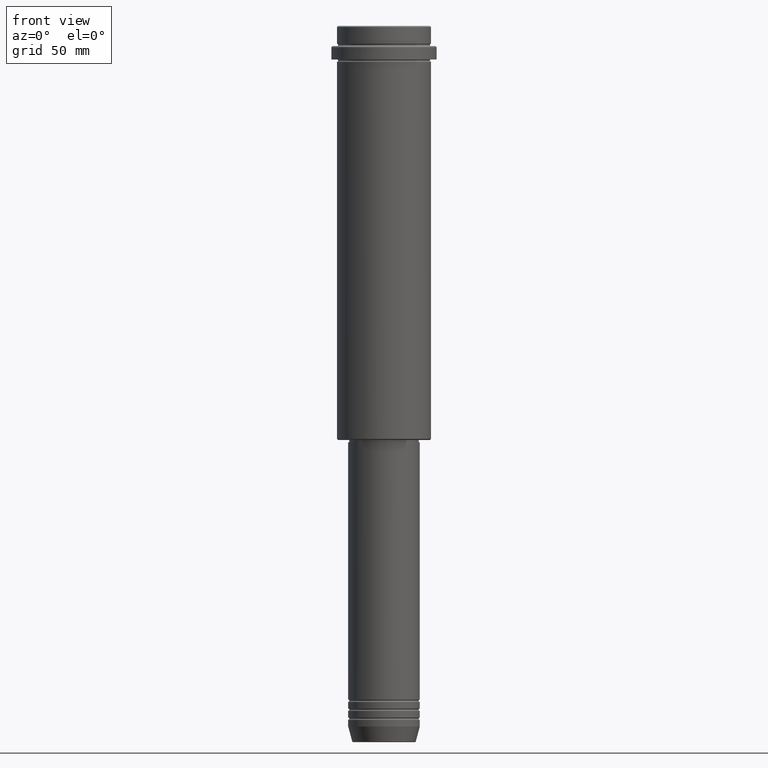
[diagram: clean part render]
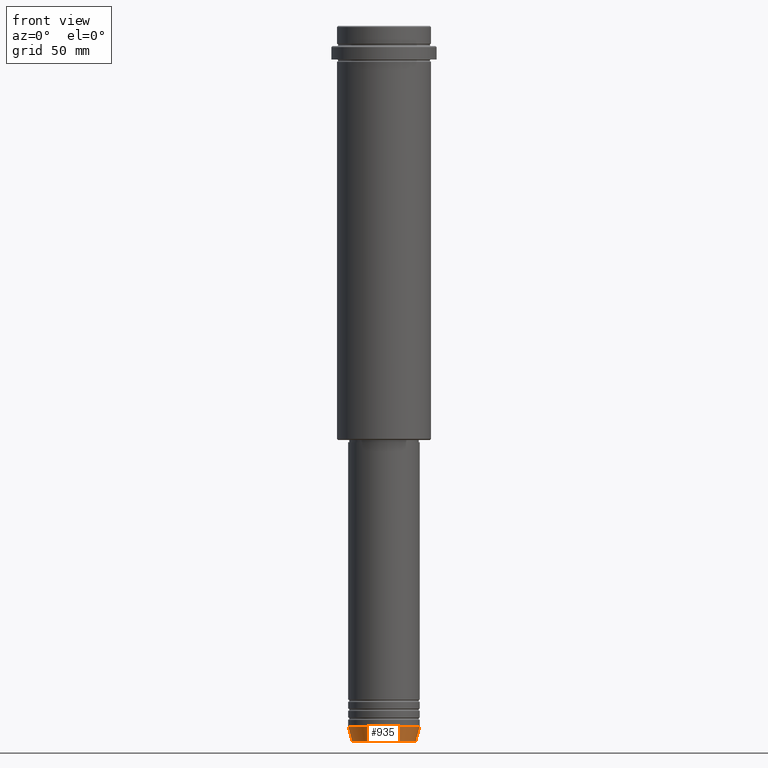
[diagram: same view with one face highlighted and labeled with its STEP entity id]
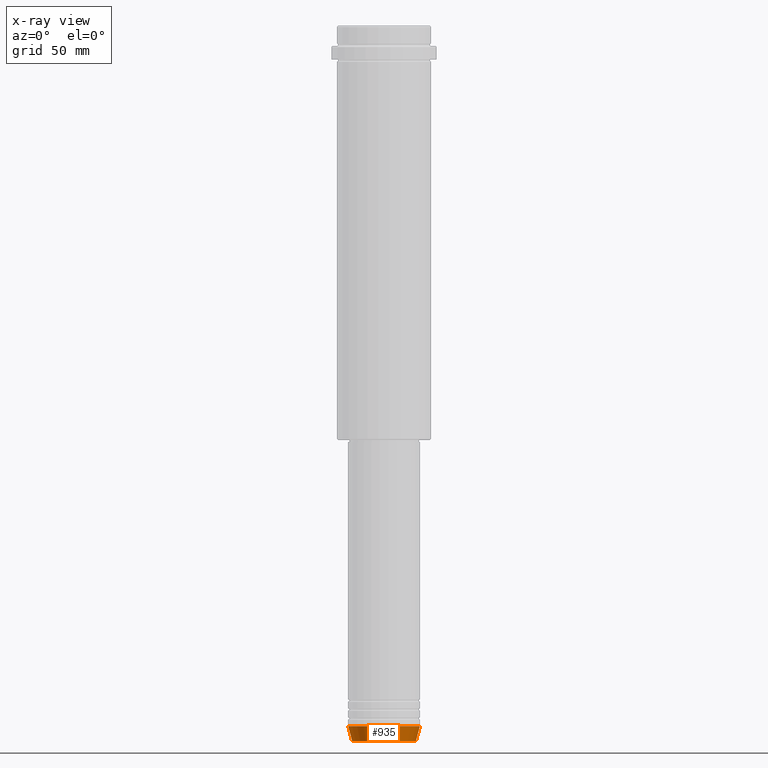
[diagram: x-ray of the same camera — body ghosted, the highlighted face saturated]
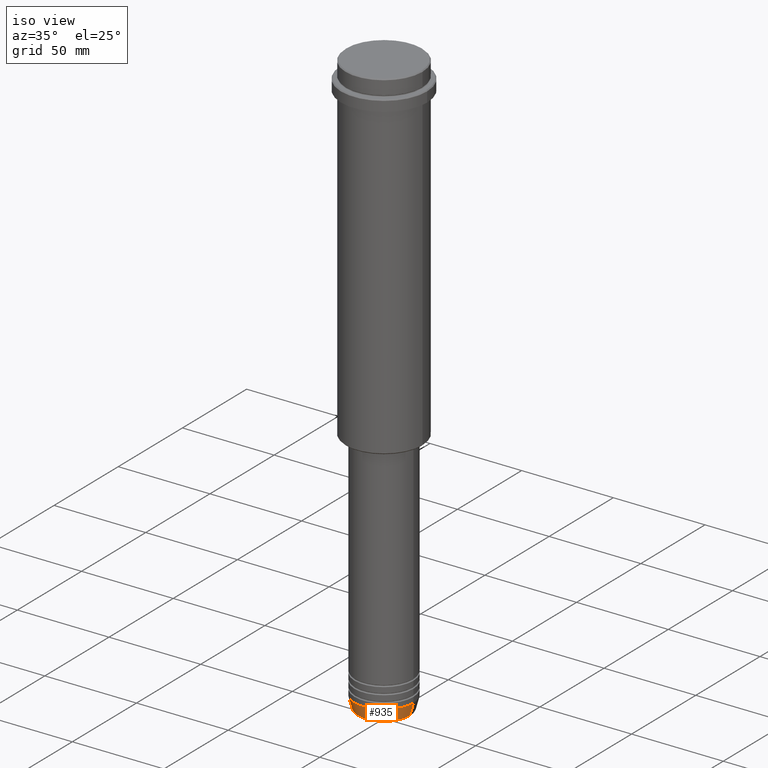
[diagram: same view with one face highlighted and labeled with its STEP entity id]
A machine part, front view. The second image highlights one B-rep face of the part: STEP entity #935.
The next image is the same camera in x-ray: the body ghosted, the highlighted face saturated — about 0% of this face is hidden behind the body in this view.
A second angle (iso view) of the same face is appended — the face is thin or edge-on in the first view.
In plain terms, the highlighted conical surface has half-angle 15 deg.
Its self-contained STEP definition (entity closure, byte-faithful):
#34 = VERTEX_POINT ( 'NONE', #930 ) ;
#41 = CONICAL_SURFACE ( 'NONE', #840, 16.00000000000000000, 0.2617993877991500740 ) ;
#64 = AXIS2_PLACEMENT_3D ( 'NONE', #402, #1178, #1062 ) ;
#99 = DIRECTION ( 'NONE',  ( 1.000000000000000000, 0.000000000000000000, 0.000000000000000000 ) ) ;
#115 = CARTESIAN_POINT ( 'NONE',  ( 0.000000000000000000, 0.000000000000000000, -313.0000000000000000 ) ) ;
#123 = VERTEX_POINT ( 'NONE', #826 ) ;
#127 = AXIS2_PLACEMENT_3D ( 'NONE', #1007, #1331, #99 ) ;
#236 = LINE ( 'NONE', #1329, #393 ) ;
#262 = EDGE_CURVE ( 'NONE', #478, #34, #1252, .T. ) ;
#338 = CARTESIAN_POINT ( 'NONE',  ( -16.00000000000000000, 1.959434878635765131E-15, -313.0000000000000000 ) ) ;
#393 = VECTOR ( 'NONE', #1310, 1000.000000000000000 ) ;
#402 = CARTESIAN_POINT ( 'NONE',  ( 0.000000000000000000, 0.000000000000000000, -313.0000000000000000 ) ) ;
#420 = EDGE_CURVE ( 'NONE', #1376, #123, #744, .T. ) ;
#478 = VERTEX_POINT ( 'NONE', #338 ) ;
#486 = ORIENTED_EDGE ( 'NONE', *, *, #262, .F. ) ;
#529 = CARTESIAN_POINT ( 'NONE',  ( -14.22365507213718772, 1.850665122131323337E-15, -319.6294095225512706 ) ) ;
#539 = ORIENTED_EDGE ( 'NONE', *, *, #1307, .T. ) ;
#642 = EDGE_LOOP ( 'NONE', ( #749, #1339, #539, #486 ) ) ;
#658 = DIRECTION ( 'NONE',  ( 1.000000000000000000, 0.000000000000000000, 0.000000000000000000 ) ) ;
#744 = CIRCLE ( 'NONE', #127, 14.22365507213718772 ) ;
#749 = ORIENTED_EDGE ( 'NONE', *, *, #864, .F. ) ;
#826 = CARTESIAN_POINT ( 'NONE',  ( 14.22365507213718772, 0.000000000000000000, -319.6294095225512706 ) ) ;
#840 = AXIS2_PLACEMENT_3D ( 'NONE', #115, #1202, #658 ) ;
#864 = EDGE_CURVE ( 'NONE', #1376, #478, #236, .T. ) ;
#930 = CARTESIAN_POINT ( 'NONE',  ( 16.00000000000000000, 0.000000000000000000, -313.0000000000000000 ) ) ;
#935 = ADVANCED_FACE ( 'NONE', ( #987 ), #41, .T. ) ;
#969 = DIRECTION ( 'NONE',  ( 0.2588190451025213501, 0.000000000000000000, 0.9659258262890680902 ) ) ;
#987 = FACE_OUTER_BOUND ( 'NONE', #642, .T. ) ;
#1007 = CARTESIAN_POINT ( 'NONE',  ( 0.000000000000000000, 0.000000000000000000, -319.6294095225512706 ) ) ;
#1062 = DIRECTION ( 'NONE',  ( 1.000000000000000000, 0.000000000000000000, 0.000000000000000000 ) ) ;
#1178 = DIRECTION ( 'NONE',  ( -0.000000000000000000, -0.000000000000000000, 1.000000000000000000 ) ) ;
#1186 = VECTOR ( 'NONE', #969, 1000.000000000000000 ) ;
#1187 = LINE ( 'NONE', #1407, #1186 ) ;
#1202 = DIRECTION ( 'NONE',  ( -0.000000000000000000, -0.000000000000000000, 1.000000000000000000 ) ) ;
#1252 = CIRCLE ( 'NONE', #64, 16.00000000000000000 ) ;
#1307 = EDGE_CURVE ( 'NONE', #123, #34, #1187, .T. ) ;
#1310 = DIRECTION ( 'NONE',  ( -0.2588190451025213501, 3.169619151431772337E-17, 0.9659258262890680902 ) ) ;
#1329 = CARTESIAN_POINT ( 'NONE',  ( -16.00000000000000000, 1.959434878635765131E-15, -313.0000000000000000 ) ) ;
#1331 = DIRECTION ( 'NONE',  ( -0.000000000000000000, -0.000000000000000000, 1.000000000000000000 ) ) ;
#1339 = ORIENTED_EDGE ( 'NONE', *, *, #420, .T. ) ;
#1376 = VERTEX_POINT ( 'NONE', #529 ) ;
#1407 = CARTESIAN_POINT ( 'NONE',  ( 16.00000000000000000, 0.000000000000000000, -313.0000000000000000 ) ) ;